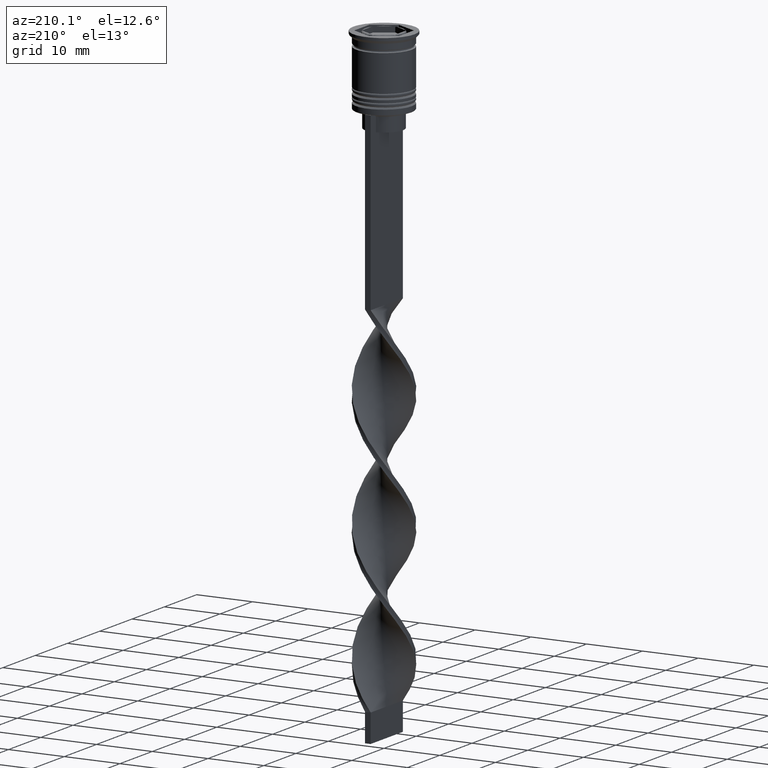
[diagram: clean part render]
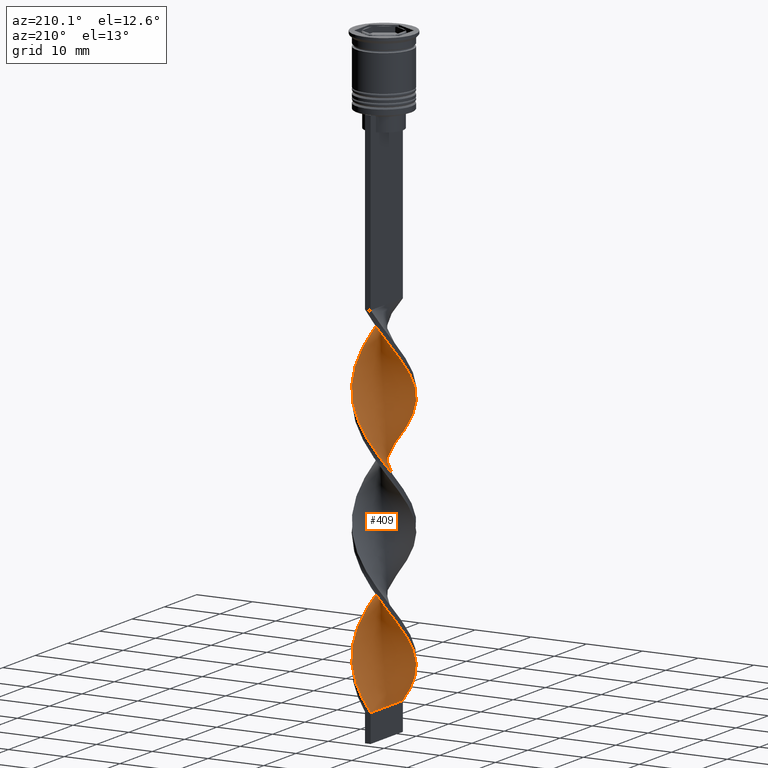
[diagram: same view with one face highlighted and labeled with its STEP entity id]
A machine part, auxiliary view. The second image highlights one B-rep face of the part: STEP entity #409.
In plain terms, the highlighted face is a freeform B-spline surface patch.
Its self-contained STEP definition (entity closure, byte-faithful):
#1 =( BOUNDED_SURFACE ( )  B_SPLINE_SURFACE ( 1, 2, ( 
 ( #1142, #1425, #281, #2482, #1371, #581, #1655, #1968, #2499, #1691, #561, #1947, #1932, #261, #2275, #3416, #3675, #3641, #858, #2854, #1122, #3381, #3347, #533, #1706, #3063, #1678, #2784, #3363, #2554, #2001, #3133, #2260, #803, #3082, #1728, #245, #299, #3626, #3656, #2802, #1068, #2210, #786, #3401, #1385, #2514, #1100, #2241, #824, #3101, #1984, #2816, #1401, #2532, #3509, #1476, #1795, #87, #1496, #2585, #3152, #2037, #1760, #313, #3185, #616, #30, #3488, #1176, #2642, #2313, #2022, #3472, #599, #2868, #891, #1743, #2570 ),
 ( #1454, #3453, #3167, #633, #1212, #2329, #2925, #2887, #1195, #329, #908, #2609, #1813, #51, #2051, #3224, #670, #3207, #2624, #2071, #1778, #652, #1156, #2910, #351, #2345, #69, #930, #367, #951, #1513, #1230, #2366, #2090, #2943, #1439, #11, #2292, #3433, #874, #3267, #1557, #2441, #2683, #1619, #1269, #969, #2419, #2109, #1834, #3545, #692, #1535, #1030, #767, #3246, #472, #1251, #2382, #1290, #1913, #128, #734, #3601, #1045, #3566, #3528, #428, #1012, #2152, #2184, #1332, #1854, #3325, #3585, #1873, #1575, #448, #2398 ) ),
 .UNSPECIFIED., .F., .F., .T. ) 
 B_SPLINE_SURFACE_WITH_KNOTS ( ( 2, 2 ),
 ( 3, 2, 2, 2, 2, 2, 2, 2, 2, 2, 2, 2, 2, 2, 2, 2, 2, 2, 2, 2, 2, 2, 2, 2, 2, 2, 2, 2, 2, 2, 2, 2, 2, 2, 2, 2, 2, 2, 2, 3 ),
 ( 0.000000000000000000, 1.000000000000000000 ),
 ( 0.000000000000000000, 0.01923076923076923184, 0.03846153846153846367, 0.05769230769230769551, 0.07692307692307692735, 0.09615384615384615918, 0.1153846153846153910, 0.1346153846153846090, 0.1538461538461538547, 0.1730769230769230727, 0.1923076923076923184, 0.2115384615384615363, 0.2307692307692307820, 0.2500000000000000000, 0.2692307692307692180, 0.2884615384615384359, 0.3076923076923077094, 0.3269230769230769273, 0.3461538461538461453, 0.3653846153846153633, 0.3846153846153846367, 0.4038461538461538547, 0.4230769230769230727, 0.4423076923076922906, 0.4615384615384615641, 0.4807692307692307820, 0.5000000000000000000, 0.5192307692307692735, 0.5384615384615384359, 0.5576923076923077094, 0.5769230769230768718, 0.5961538461538461453, 0.6153846153846154188, 0.6346153846153845812, 0.6538461538461538547, 0.6730769230769231282, 0.6923076923076922906, 0.7115384615384615641, 0.7307692307692307265, 0.7500000000000000000 ),
 .UNSPECIFIED. ) 
 GEOMETRIC_REPRESENTATION_ITEM ( )  RATIONAL_B_SPLINE_SURFACE ( (
 ( 1.000000000000000000, 0.9927088740980539727, 1.000000000000000000, 0.9927088740980539727, 1.000000000000000000, 0.9927088740980539727, 1.000000000000000000, 0.9927088740980539727, 1.000000000000000000, 0.9927088740980539727, 1.000000000000000000, 0.9927088740980539727, 1.000000000000000000, 0.9927088740980539727, 1.000000000000000000, 0.9927088740980539727, 1.000000000000000000, 0.9927088740980539727, 1.000000000000000000, 0.9927088740980539727, 1.000000000000000000, 0.9927088740980539727, 1.000000000000000000, 0.9927088740980539727, 1.000000000000000000, 0.9927088740980539727, 1.000000000000000000, 0.9927088740980539727, 1.000000000000000000, 0.9927088740980539727, 1.000000000000000000, 0.9927088740980539727, 1.000000000000000000, 0.9927088740980539727, 1.000000000000000000, 0.9927088740980539727, 1.000000000000000000, 0.9927088740980539727, 1.000000000000000000, 0.9927088740980539727, 1.000000000000000000, 0.9927088740980539727, 1.000000000000000000, 0.9927088740980539727, 1.000000000000000000, 0.9927088740980539727, 1.000000000000000000, 0.9927088740980539727, 1.000000000000000000, 0.9927088740980539727, 1.000000000000000000, 0.9927088740980539727, 1.000000000000000000, 0.9927088740980539727, 1.000000000000000000, 0.9927088740980539727, 1.000000000000000000, 0.9927088740980539727, 1.000000000000000000, 0.9927088740980539727, 1.000000000000000000, 0.9927088740980539727, 1.000000000000000000, 0.9927088740980539727, 1.000000000000000000, 0.9927088740980539727, 1.000000000000000000, 0.9927088740980539727, 1.000000000000000000, 0.9927088740980539727, 1.000000000000000000, 0.9927088740980539727, 1.000000000000000000, 0.9927088740980539727, 1.000000000000000000, 0.9927088740980539727, 1.000000000000000000, 0.9927088740980539727, 1.000000000000000000),
 ( 1.000000000000000000, 0.9927088740980539727, 1.000000000000000000, 0.9927088740980539727, 1.000000000000000000, 0.9927088740980539727, 1.000000000000000000, 0.9927088740980539727, 1.000000000000000000, 0.9927088740980539727, 1.000000000000000000, 0.9927088740980539727, 1.000000000000000000, 0.9927088740980539727, 1.000000000000000000, 0.9927088740980539727, 1.000000000000000000, 0.9927088740980539727, 1.000000000000000000, 0.9927088740980539727, 1.000000000000000000, 0.9927088740980539727, 1.000000000000000000, 0.9927088740980539727, 1.000000000000000000, 0.9927088740980539727, 1.000000000000000000, 0.9927088740980539727, 1.000000000000000000, 0.9927088740980539727, 1.000000000000000000, 0.9927088740980539727, 1.000000000000000000, 0.9927088740980539727, 1.000000000000000000, 0.9927088740980539727, 1.000000000000000000, 0.9927088740980539727, 1.000000000000000000, 0.9927088740980539727, 1.000000000000000000, 0.9927088740980539727, 1.000000000000000000, 0.9927088740980539727, 1.000000000000000000, 0.9927088740980539727, 1.000000000000000000, 0.9927088740980539727, 1.000000000000000000, 0.9927088740980539727, 1.000000000000000000, 0.9927088740980539727, 1.000000000000000000, 0.9927088740980539727, 1.000000000000000000, 0.9927088740980539727, 1.000000000000000000, 0.9927088740980539727, 1.000000000000000000, 0.9927088740980539727, 1.000000000000000000, 0.9927088740980539727, 1.000000000000000000, 0.9927088740980539727, 1.000000000000000000, 0.9927088740980539727, 1.000000000000000000, 0.9927088740980539727, 1.000000000000000000, 0.9927088740980539727, 1.000000000000000000, 0.9927088740980539727, 1.000000000000000000, 0.9927088740980539727, 1.000000000000000000, 0.9927088740980539727, 1.000000000000000000, 0.9927088740980539727, 1.000000000000000000) ) ) 
 REPRESENTATION_ITEM ( '' )  SURFACE ( )  );
#11 = CARTESIAN_POINT ( 'NONE',  ( -4.852383656948341617, 1.305516313869971912, -73.03846153846153300 ) ) ;
#30 = CARTESIAN_POINT ( 'NONE',  ( -5.010902036907450174, -0.7163302668880179302, -98.47435897435896379 ) ) ;
#51 = CARTESIAN_POINT ( 'NONE',  ( 5.036723384328412934, 0.5036723384328410935, -54.16666666666665719 ) ) ;
#69 = CARTESIAN_POINT ( 'NONE',  ( -0.4999999999999993339, 4.999999999999999112, -64.83333333333332860 ) ) ;
#85 = CARTESIAN_POINT ( 'NONE',  ( -5.036723384328415598, 0.5036723384328417596, -96.83333333333332860 ) ) ;
#87 = CARTESIAN_POINT ( 'NONE',  ( -2.941357917118425203, 4.074115069975904113, -91.08974358974359120 ) ) ;
#88 = CARTESIAN_POINT ( 'NONE',  ( -2.941357917118426535, -4.074115069975901449, -81.24358974358973740 ) ) ;
#107 = CARTESIAN_POINT ( 'NONE',  ( -4.903276030362609283, 1.099037838325643168, -53.34615384615383959 ) ) ;
#111 = CARTESIAN_POINT ( 'NONE',  ( 3.689868665289525396, -3.410992411735107588, -91.08974358974359120 ) ) ;
#126 = CARTESIAN_POINT ( 'NONE',  ( -2.256988544190328572, -4.530813501584093572, -62.37179487179486870 ) ) ;
#128 = CARTESIAN_POINT ( 'NONE',  ( 4.693865276989234836, -1.894702360851923117, -93.55128205128204399 ) ) ;
#130 = CARTESIAN_POINT ( 'NONE',  ( 3.830886956102703245, 3.251815666602606569, -58.26923076923076650 ) ) ;
#146 = CARTESIAN_POINT ( 'NONE',  ( -5.010902036907449286, -0.7163302668880179302, -98.47435897435896379 ) ) ;
#169 = CARTESIAN_POINT ( 'NONE',  ( -1.682049230150816532, -4.735051254986481162, -63.19230769230768630 ) ) ;
#174 = CARTESIAN_POINT ( 'NONE',  ( 4.903276030362607507, 1.099037838325641392, -54.98717948717948190 ) ) ;
#190 = CARTESIAN_POINT ( 'NONE',  ( -0.5000000000000002220, -1.666666666666667851, -107.5000000000000000 ) ) ;
#206 = CARTESIAN_POINT ( 'NONE',  ( -0.4999999999999993339, 4.999999999999999112, -107.5000000000000000 ) ) ;
#230 = FACE_OUTER_BOUND ( 'NONE', #3639, .T. ) ;
#245 = CARTESIAN_POINT ( 'NONE',  ( 4.497778769905806939, -2.240532556555387078, -73.03846153846153300 ) ) ;
#261 = CARTESIAN_POINT ( 'NONE',  ( -5.036723384328414710, 0.5036723384328417596, -54.16666666666665719 ) ) ;
#272 = EDGE_CURVE ( 'NONE', #1556, #3673, #2990, .T. ) ;
#279 = ORIENTED_EDGE ( 'NONE', *, *, #2842, .F. ) ;
#281 = CARTESIAN_POINT ( 'NONE',  ( -0.7111074127247628551, 4.974366919274039844, -45.14102564102563520 ) ) ;
#299 = CARTESIAN_POINT ( 'NONE',  ( 4.769828676396805633, -1.694403338218443800, -73.85897435897436480 ) ) ;
#310 = CARTESIAN_POINT ( 'NONE',  ( -3.436045048790599132, 3.716969558312887667, -49.24358974358974450 ) ) ;
#313 = CARTESIAN_POINT ( 'NONE',  ( -4.903276030362609283, 1.099037838325643168, -96.01282051282051100 ) ) ;
#329 = CARTESIAN_POINT ( 'NONE',  ( 4.693865276989234836, -1.894702360851923117, -50.88461538461538680 ) ) ;
#351 = CARTESIAN_POINT ( 'NONE',  ( 0.7111074127247642984, 4.974366919274038068, -63.19230769230768630 ) ) ;
#365 = CARTESIAN_POINT ( 'NONE',  ( 0.5000000000000000000, 5.000000000000000888, -86.16666666666667140 ) ) ;
#367 = CARTESIAN_POINT ( 'NONE',  ( -1.682049230150812980, 4.735051254986481162, -66.47435897435896379 ) ) ;
#368 = CARTESIAN_POINT ( 'NONE',  ( 1.682049230150814534, -4.735051254986480274, -45.14102564102563520 ) ) ;
#384 = CARTESIAN_POINT ( 'NONE',  ( 0.7111074127247614118, -4.974366919274040733, -66.47435897435896379 ) ) ;
#387 = CARTESIAN_POINT ( 'NONE',  ( 4.104038128678484831, -2.962961240565978205, -49.24358974358974450 ) ) ;
#406 = CARTESIAN_POINT ( 'NONE',  ( 4.769828676396804745, -1.694403338218443578, -73.85897435897436480 ) ) ;
#409 = ADVANCED_FACE ( 'NONE', ( #230 ), #1, .T. ) ;
#411 = CARTESIAN_POINT ( 'NONE',  ( 4.769828676396803857, 1.694403338218442689, -55.80769230769230660 ) ) ;
#426 = CARTESIAN_POINT ( 'NONE',  ( 4.104038128678488384, 2.962961240565975096, -80.42307692307691980 ) ) ;
#428 = CARTESIAN_POINT ( 'NONE',  ( 4.769828676396803857, 1.694403338218442912, -98.47435897435896379 ) ) ;
#430 = CARTESIAN_POINT ( 'NONE',  ( -1.682049230150812980, 4.735051254986481162, -66.47435897435896379 ) ) ;
#436 = DIRECTION ( 'NONE',  ( 0.000000000000000000, 1.000000000000000000, 0.000000000000000000 ) ) ;
#445 = CARTESIAN_POINT ( 'NONE',  ( -4.852383656948343393, -1.305516313869969913, -99.29487179487178139 ) ) ;
#448 = CARTESIAN_POINT ( 'NONE',  ( 0.1071099161113048398, 5.060710991611130360, -106.6794871794871682 ) ) ;
#449 = CARTESIAN_POINT ( 'NONE',  ( 4.225728863414809133, 2.786661774892327692, -57.44871794871794890 ) ) ;
#472 = CARTESIAN_POINT ( 'NONE',  ( 2.766343873045447044, -4.194918542244165494, -89.44871794871794179 ) ) ;
#527 = CARTESIAN_POINT ( 'NONE',  ( 4.693865276989234836, -1.894702360851923340, -93.55128205128204399 ) ) ;
#533 = CARTESIAN_POINT ( 'NONE',  ( -2.256988544190328572, -4.530813501584093572, -62.37179487179486870 ) ) ;
#561 = CARTESIAN_POINT ( 'NONE',  ( -4.497778769905806939, 2.240532556555386634, -51.70512820512820440 ) ) ;
#581 = CARTESIAN_POINT ( 'NONE',  ( -2.446670785446253049, 4.431260581638921003, -47.60256410256408799 ) ) ;
#596 = CARTESIAN_POINT ( 'NONE',  ( 0.5000000000000000000, 5.000000000000000888, -43.50000000000000000 ) ) ;
#599 = CARTESIAN_POINT ( 'NONE',  ( -2.766343873045448376, -4.194918542244166382, -104.2179487179487012 ) ) ;
#616 = CARTESIAN_POINT ( 'NONE',  ( -5.023812710617932886, -0.1063289642275874608, -97.65384615384614619 ) ) ;
#633 = CARTESIAN_POINT ( 'NONE',  ( 2.256988544190325907, -4.530813501584092684, -45.96153846153845279 ) ) ;
#650 = CARTESIAN_POINT ( 'NONE',  ( 1.107109916111305603, 4.939289008388870528, -85.34615384615385381 ) ) ;
#652 = CARTESIAN_POINT ( 'NONE',  ( 2.446670785446252605, 4.431260581638919227, -60.73076923076922640 ) ) ;
#668 = CARTESIAN_POINT ( 'NONE',  ( 2.256988544190329016, 4.530813501584093572, -83.70512820512820440 ) ) ;
#670 = CARTESIAN_POINT ( 'NONE',  ( 4.497778769905805163, 2.240532556555384414, -56.62820512820513130 ) ) ;
#671 = CARTESIAN_POINT ( 'NONE',  ( -1.107109916111301606, 4.939289008388868751, -65.65384615384614619 ) ) ;
#689 = CARTESIAN_POINT ( 'NONE',  ( 4.225728863414809133, -2.786661774892331245, -72.21794871794871540 ) ) ;
#692 = CARTESIAN_POINT ( 'NONE',  ( -0.1071099161113053949, -5.060710991611130360, -85.34615384615383959 ) ) ;
#693 = CARTESIAN_POINT ( 'NONE',  ( -2.766343873045446600, 4.194918542244165494, -68.11538461538459899 ) ) ;
#713 = CARTESIAN_POINT ( 'NONE',  ( -3.275699201900569069, -3.859023582904238303, -60.73076923076922640 ) ) ;
#731 = CARTESIAN_POINT ( 'NONE',  ( -4.769828676396803857, 1.694403338218444022, -95.19230769230769340 ) ) ;
#734 = CARTESIAN_POINT ( 'NONE',  ( 4.852383656948341617, -1.305516313869971246, -94.37179487179486159 ) ) ;
#735 = CARTESIAN_POINT ( 'NONE',  ( -4.693865276989233060, 1.894702360851926004, -72.21794871794871540 ) ) ;
#753 = CARTESIAN_POINT ( 'NONE',  ( 1.107109916111302717, -4.939289008388868751, -86.98717948717948900 ) ) ;
#767 = CARTESIAN_POINT ( 'NONE',  ( 1.682049230150814534, -4.735051254986480274, -87.80769230769230660 ) ) ;
#769 = CARTESIAN_POINT ( 'NONE',  ( -0.4999999999999997780, 1.666666666666666075, -107.5000000000000000 ) ) ;
#786 = CARTESIAN_POINT ( 'NONE',  ( 4.693865276989236612, 1.894702360851920897, -78.78205128205127039 ) ) ;
#803 = CARTESIAN_POINT ( 'NONE',  ( 3.436045048790597800, -3.716969558312888555, -70.57692307692306599 ) ) ;
#819 = CARTESIAN_POINT ( 'NONE',  ( 3.830886956102703245, 3.251815666602606569, -100.9358974358974308 ) ) ;
#824 = CARTESIAN_POINT ( 'NONE',  ( 2.256988544190329016, 4.530813501584093572, -83.70512820512820440 ) ) ;
#837 = CARTESIAN_POINT ( 'NONE',  ( -0.5000000000000006661, -5.000000000000000888, -107.5000000000000000 ) ) ;
#858 = CARTESIAN_POINT ( 'NONE',  ( -4.398951702833861610, -2.428831800708950883, -58.26923076923076650 ) ) ;
#874 = CARTESIAN_POINT ( 'NONE',  ( -5.036723384328412934, -0.5036723384328404274, -75.49999999999998579 ) ) ;
#889 = CARTESIAN_POINT ( 'NONE',  ( -4.225728863414810910, 2.786661774892329024, -50.88461538461537970 ) ) ;
#891 = CARTESIAN_POINT ( 'NONE',  ( -1.682049230150816532, -4.735051254986481162, -105.8589743589743506 ) ) ;
#908 = CARTESIAN_POINT ( 'NONE',  ( 4.852383656948341617, -1.305516313869971246, -51.70512820512820440 ) ) ;
#925 = CARTESIAN_POINT ( 'NONE',  ( -3.689868665289528060, -3.410992411735107144, -102.5769230769230660 ) ) ;
#930 = CARTESIAN_POINT ( 'NONE',  ( -1.107109916111301828, 4.939289008388868751, -65.65384615384614619 ) ) ;
#949 = CARTESIAN_POINT ( 'NONE',  ( -1.880887847392238132, 4.659641714287934278, -89.44871794871794179 ) ) ;
#951 = CARTESIAN_POINT ( 'NONE',  ( -2.256988544190325019, 4.530813501584093572, -67.29487179487178139 ) ) ;
#953 = CARTESIAN_POINT ( 'NONE',  ( 3.275699201900567292, -3.859023582904237415, -90.26923076923077360 ) ) ;
#966 = CARTESIAN_POINT ( 'NONE',  ( -4.903276030362609283, 1.099037838325643168, -96.01282051282051100 ) ) ;
#969 = CARTESIAN_POINT ( 'NONE',  ( -2.941357917118426535, -4.074115069975901449, -81.24358974358973740 ) ) ;
#971 = CARTESIAN_POINT ( 'NONE',  ( -0.1071099161113053949, -5.060710991611129472, -85.34615384615385381 ) ) ;
#987 = CARTESIAN_POINT ( 'NONE',  ( 2.766343873045451041, 4.194918542244163717, -82.88461538461537259 ) ) ;
#990 = CARTESIAN_POINT ( 'NONE',  ( -5.036723384328413822, -0.5036723384328405384, -75.50000000000000000 ) ) ;
#1010 = CARTESIAN_POINT ( 'NONE',  ( -0.7111074127247628551, 4.974366919274039844, -87.80769230769230660 ) ) ;
#1012 = CARTESIAN_POINT ( 'NONE',  ( 4.497778769905805163, 2.240532556555384414, -99.29487179487178139 ) ) ;
#1013 = CARTESIAN_POINT ( 'NONE',  ( 4.693865276989234836, -1.894702360851923340, -50.88461538461537970 ) ) ;
#1030 = CARTESIAN_POINT ( 'NONE',  ( 1.107109916111302717, -4.939289008388868751, -86.98717948717948900 ) ) ;
#1031 = CARTESIAN_POINT ( 'NONE',  ( -1.315104909338224548, -4.888022846936946664, -83.70512820512820440 ) ) ;
#1045 = CARTESIAN_POINT ( 'NONE',  ( 5.023812710617931110, -0.1063289642275889874, -96.01282051282051100 ) ) ;
#1048 = CARTESIAN_POINT ( 'NONE',  ( 4.852383656948341617, -1.305516313869971246, -94.37179487179486159 ) ) ;
#1064 = CARTESIAN_POINT ( 'NONE',  ( 5.036723384328413822, 0.5036723384328410935, -96.83333333333332860 ) ) ;
#1068 = CARTESIAN_POINT ( 'NONE',  ( 5.010902036907451063, 0.7163302668880160429, -77.14102564102563520 ) ) ;
#1078 = CARTESIAN_POINT ( 'NONE',  ( 1.315104909338224104, 4.888022846936946664, -105.0384615384615188 ) ) ;
#1100 = CARTESIAN_POINT ( 'NONE',  ( 3.275699201900569513, 3.859023582904238303, -82.06410256410255499 ) ) ;
#1122 = CARTESIAN_POINT ( 'NONE',  ( -3.689868665289528060, -3.410992411735107144, -59.91025641025640880 ) ) ;
#1142 = CARTESIAN_POINT ( 'NONE',  ( 0.5000000000000000000, 5.000000000000000888, -43.50000000000000000 ) ) ;
#1156 = CARTESIAN_POINT ( 'NONE',  ( 1.880887847392238132, 4.659641714287932501, -61.55128205128204399 ) ) ;
#1176 = CARTESIAN_POINT ( 'NONE',  ( -4.693865276989236612, -1.894702360851923562, -100.1153846153846274 ) ) ;
#1195 = CARTESIAN_POINT ( 'NONE',  ( 4.398951702833859834, -2.428831800708950883, -50.06410256410256210 ) ) ;
#1212 = CARTESIAN_POINT ( 'NONE',  ( 2.766343873045447044, -4.194918542244165494, -46.78205128205127750 ) ) ;
#1227 = CARTESIAN_POINT ( 'NONE',  ( 3.830886956102704133, -3.251815666602608346, -71.39743589743588359 ) ) ;
#1230 = CARTESIAN_POINT ( 'NONE',  ( -3.275699201900567736, 3.859023582904237415, -68.93589743589743080 ) ) ;
#1232 = CARTESIAN_POINT ( 'NONE',  ( 2.766343873045447044, -4.194918542244165494, -89.44871794871794179 ) ) ;
#1249 = CARTESIAN_POINT ( 'NONE',  ( -2.446670785446253049, 4.431260581638920115, -90.26923076923077360 ) ) ;
#1251 = CARTESIAN_POINT ( 'NONE',  ( 3.275699201900567736, -3.859023582904237415, -90.26923076923075939 ) ) ;
#1254 = CARTESIAN_POINT ( 'NONE',  ( 0.1071099161113048537, 5.060710991611129472, -64.01282051282051100 ) ) ;
#1267 = CARTESIAN_POINT ( 'NONE',  ( 1.880887847392237688, -4.659641714287934278, -68.11538461538459899 ) ) ;
#1269 = CARTESIAN_POINT ( 'NONE',  ( -3.436045048790600909, -3.716969558312882782, -80.42307692307691980 ) ) ;
#1270 = CARTESIAN_POINT ( 'NONE',  ( 2.941357917118426091, 4.074115069975901449, -59.91025641025640880 ) ) ;
#1288 = CARTESIAN_POINT ( 'NONE',  ( -1.107109916111305159, -4.939289008388870528, -64.01282051282051100 ) ) ;
#1290 = CARTESIAN_POINT ( 'NONE',  ( 4.104038128678483943, -2.962961240565977761, -91.91025641025643722 ) ) ;
#1292 = CARTESIAN_POINT ( 'NONE',  ( -2.256988544190325019, 4.530813501584093572, -67.29487179487178139 ) ) ;
#1311 = CARTESIAN_POINT ( 'NONE',  ( -4.693865276989236612, -1.894702360851923784, -100.1153846153846132 ) ) ;
#1314 = CARTESIAN_POINT ( 'NONE',  ( -4.497778769905805163, -2.240532556555384858, -77.96153846153845279 ) ) ;
#1332 = CARTESIAN_POINT ( 'NONE',  ( 3.436045048790599132, 3.716969558312884558, -101.7564102564102484 ) ) ;
#1333 = CARTESIAN_POINT ( 'NONE',  ( 4.903276030362607507, 1.099037838325641392, -97.65384615384614619 ) ) ;
#1369 = ORIENTED_EDGE ( 'NONE', *, *, #2558, .T. ) ;
#1371 = CARTESIAN_POINT ( 'NONE',  ( -1.880887847392238132, 4.659641714287934278, -46.78205128205127750 ) ) ;
#1385 = CARTESIAN_POINT ( 'NONE',  ( 4.104038128678487496, 2.962961240565975096, -80.42307692307691980 ) ) ;
#1401 = CARTESIAN_POINT ( 'NONE',  ( -0.1071099161113027859, 5.060710991611132137, -86.98717948717948900 ) ) ;
#1425 = CARTESIAN_POINT ( 'NONE',  ( -0.1071099161113027859, 5.060710991611132137, -44.32051282051282470 ) ) ;
#1439 = CARTESIAN_POINT ( 'NONE',  ( -4.693865276989233060, 1.894702360851926226, -72.21794871794871540 ) ) ;
#1454 = CARTESIAN_POINT ( 'NONE',  ( 0.5000000000000000000, -4.999999999999999112, -43.50000000000000000 ) ) ;
#1476 = CARTESIAN_POINT ( 'NONE',  ( -1.880887847392238132, 4.659641714287934278, -89.44871794871794179 ) ) ;
#1496 = CARTESIAN_POINT ( 'NONE',  ( -3.436045048790599132, 3.716969558312887667, -91.91025641025643722 ) ) ;
#1510 = CARTESIAN_POINT ( 'NONE',  ( -4.398951702833861610, -2.428831800708950883, -58.26923076923076650 ) ) ;
#1513 = CARTESIAN_POINT ( 'NONE',  ( -2.766343873045446600, 4.194918542244165494, -68.11538461538459899 ) ) ;
#1514 = CARTESIAN_POINT ( 'NONE',  ( -4.104038128678483943, 2.962961240565979537, -70.57692307692306599 ) ) ;
#1532 = CARTESIAN_POINT ( 'NONE',  ( 4.903276030362609283, -1.099037838325644945, -74.67948717948718240 ) ) ;
#1535 = CARTESIAN_POINT ( 'NONE',  ( 0.5000000000000000000, -4.999999999999999112, -86.16666666666667140 ) ) ;
#1538 = CARTESIAN_POINT ( 'NONE',  ( -1.880887847392241019, -4.659641714287931613, -82.88461538461537259 ) ) ;
#1554 = CARTESIAN_POINT ( 'NONE',  ( -3.830886956102704133, 3.251815666602608346, -92.73076923076922640 ) ) ;
#1556 = VERTEX_POINT ( 'NONE', #2864 ) ;
#1557 = CARTESIAN_POINT ( 'NONE',  ( -4.769828676396804745, -1.694403338218441357, -77.14102564102563520 ) ) ;
#1558 = CARTESIAN_POINT ( 'NONE',  ( -0.7111074127247671850, -4.974366919274038068, -84.52564102564103621 ) ) ;
#1563 = CARTESIAN_POINT ( 'NONE',  ( 0.5000000000000000000, -4.999999999999999112, -43.50000000000000000 ) ) ;
#1572 = CARTESIAN_POINT ( 'NONE',  ( 1.682049230150819419, 4.735051254986480274, -84.52564102564103621 ) ) ;
#1575 = CARTESIAN_POINT ( 'NONE',  ( 0.7111074127247642984, 4.974366919274038068, -105.8589743589743506 ) ) ;
#1577 = CARTESIAN_POINT ( 'NONE',  ( 3.436045048790599132, 3.716969558312884558, -59.08974358974358410 ) ) ;
#1594 = CARTESIAN_POINT ( 'NONE',  ( 5.010902036907450174, 0.7163302668880160429, -77.14102564102563520 ) ) ;
#1598 = CARTESIAN_POINT ( 'NONE',  ( -4.769828676396803857, -1.694403338218441135, -77.14102564102563520 ) ) ;
#1619 = CARTESIAN_POINT ( 'NONE',  ( -3.830886956102704577, -3.251815666602606125, -79.60256410256410220 ) ) ;
#1655 = CARTESIAN_POINT ( 'NONE',  ( -2.941357917118425203, 4.074115069975904113, -48.42307692307691269 ) ) ;
#1663 =( BOUNDED_CURVE ( )  B_SPLINE_CURVE ( 2, ( #596, #3486, #2582, #2884, #1740, #3450, #2865, #310, #2309, #889, #2034, #2681, #107, #2088, #2982, #3221, #2150, #1811, #1510, #2962, #2639, #713, #3264, #126, #169, #1288, #2939, #2362, #384, #3506, #1267, #1851, #1831, #2416, #1227, #689, #2380, #406, #1532, #2661, #3563, #1594, #1871, #3526, #2722, #426, #2396, #2107, #987, #668, #1572, #650, #365, #3542, #1010, #2922, #949, #1249, #2701, #3243, #1554, #2126, #3284, #731, #966, #85, #3001, #146, #445, #1311, #1792, #2439, #925, #2067, #3204, #2746, #2181, #1666, #2232 ),
 .UNSPECIFIED., .F., .T. ) 
 B_SPLINE_CURVE_WITH_KNOTS ( ( 3, 2, 2, 2, 2, 2, 2, 2, 2, 2, 2, 2, 2, 2, 2, 2, 2, 2, 2, 2, 2, 2, 2, 2, 2, 2, 2, 2, 2, 2, 2, 2, 2, 2, 2, 2, 2, 2, 2, 3 ),
 ( 0.000000000000000000, 0.01923076923076923184, 0.03846153846153846367, 0.05769230769230768857, 0.07692307692307692735, 0.09615384615384615918, 0.1153846153846153771, 0.1346153846153846090, 0.1538461538461538547, 0.1730769230769230449, 0.1923076923076923184, 0.2115384615384615363, 0.2307692307692307543, 0.2500000000000000000, 0.2692307692307692180, 0.2884615384615384359, 0.3076923076923077094, 0.3269230769230769273, 0.3461538461538460898, 0.3653846153846153633, 0.3846153846153846367, 0.4038461538461539102, 0.4230769230769230727, 0.4423076923076922906, 0.4615384615384615086, 0.4807692307692307820, 0.5000000000000000000, 0.5192307692307692735, 0.5384615384615384359, 0.5576923076923077094, 0.5769230769230768718, 0.5961538461538461453, 0.6153846153846154188, 0.6346153846153845812, 0.6538461538461538547, 0.6730769230769230171, 0.6923076923076921796, 0.7115384615384615641, 0.7307692307692307265, 0.7500000000000000000 ),
 .UNSPECIFIED. ) 
 CURVE ( )  GEOMETRIC_REPRESENTATION_ITEM ( )  RATIONAL_B_SPLINE_CURVE ( ( 1.000000000000000000, 0.9927088740980539727, 1.000000000000000000, 0.9927088740980539727, 1.000000000000000000, 0.9927088740980539727, 1.000000000000000000, 0.9927088740980539727, 1.000000000000000000, 0.9927088740980539727, 1.000000000000000000, 0.9927088740980539727, 1.000000000000000000, 0.9927088740980539727, 1.000000000000000000, 0.9927088740980539727, 1.000000000000000000, 0.9927088740980539727, 1.000000000000000000, 0.9927088740980539727, 1.000000000000000000, 0.9927088740980539727, 1.000000000000000000, 0.9927088740980539727, 1.000000000000000000, 0.9927088740980539727, 1.000000000000000000, 0.9927088740980539727, 1.000000000000000000, 0.9927088740980539727, 1.000000000000000000, 0.9927088740980539727, 1.000000000000000000, 0.9927088740980539727, 1.000000000000000000, 0.9927088740980539727, 1.000000000000000000, 0.9927088740980539727, 1.000000000000000000, 0.9927088740980539727, 1.000000000000000000, 0.9927088740980539727, 1.000000000000000000, 0.9927088740980539727, 1.000000000000000000, 0.9927088740980539727, 1.000000000000000000, 0.9927088740980539727, 1.000000000000000000, 0.9927088740980539727, 1.000000000000000000, 0.9927088740980539727, 1.000000000000000000, 0.9927088740980539727, 1.000000000000000000, 0.9927088740980539727, 1.000000000000000000, 0.9927088740980539727, 1.000000000000000000, 0.9927088740980539727, 1.000000000000000000, 0.9927088740980539727, 1.000000000000000000, 0.9927088740980539727, 1.000000000000000000, 0.9927088740980539727, 1.000000000000000000, 0.9927088740980539727, 1.000000000000000000, 0.9927088740980539727, 1.000000000000000000, 0.9927088740980539727, 1.000000000000000000, 0.9927088740980539727, 1.000000000000000000, 0.9927088740980539727, 1.000000000000000000, 0.9927088740980539727, 1.000000000000000000 ) ) 
 REPRESENTATION_ITEM ( '' )  );
#1666 = CARTESIAN_POINT ( 'NONE',  ( -1.107109916111305159, -4.939289008388870528, -106.6794871794871824 ) ) ;
#1674 = CARTESIAN_POINT ( 'NONE',  ( 1.880887847392238132, 4.659641714287932501, -104.2179487179487012 ) ) ;
#1678 = CARTESIAN_POINT ( 'NONE',  ( -0.5000000000000006661, -5.000000000000000888, -64.83333333333332860 ) ) ;
#1691 = CARTESIAN_POINT ( 'NONE',  ( -4.225728863414810910, 2.786661774892328580, -50.88461538461538680 ) ) ;
#1706 = CARTESIAN_POINT ( 'NONE',  ( -1.682049230150816532, -4.735051254986481162, -63.19230769230768630 ) ) ;
#1718 = ORIENTED_EDGE ( 'NONE', *, *, #272, .F. ) ;
#1728 = CARTESIAN_POINT ( 'NONE',  ( 4.225728863414809133, -2.786661774892330801, -72.21794871794871540 ) ) ;
#1740 = CARTESIAN_POINT ( 'NONE',  ( -1.880887847392238132, 4.659641714287934278, -46.78205128205127750 ) ) ;
#1743 = CARTESIAN_POINT ( 'NONE',  ( -1.107109916111304937, -4.939289008388870528, -106.6794871794871682 ) ) ;
#1760 = CARTESIAN_POINT ( 'NONE',  ( -4.769828676396804745, 1.694403338218444244, -95.19230769230769340 ) ) ;
#1778 = CARTESIAN_POINT ( 'NONE',  ( 2.941357917118426091, 4.074115069975901449, -59.91025641025640880 ) ) ;
#1792 = CARTESIAN_POINT ( 'NONE',  ( -4.398951702833861610, -2.428831800708950883, -100.9358974358974308 ) ) ;
#1795 = CARTESIAN_POINT ( 'NONE',  ( -2.446670785446253049, 4.431260581638921003, -90.26923076923075939 ) ) ;
#1811 = CARTESIAN_POINT ( 'NONE',  ( -4.693865276989236612, -1.894702360851923784, -57.44871794871794890 ) ) ;
#1813 = CARTESIAN_POINT ( 'NONE',  ( 5.023812710617931110, -0.1063289642275889874, -53.34615384615383959 ) ) ;
#1814 = CARTESIAN_POINT ( 'NONE',  ( -3.275699201900567292, 3.859023582904237415, -68.93589743589743080 ) ) ;
#1831 = CARTESIAN_POINT ( 'NONE',  ( 2.941357917118424758, -4.074115069975905001, -69.75641025641024839 ) ) ;
#1834 = CARTESIAN_POINT ( 'NONE',  ( -1.315104909338224770, -4.888022846936946664, -83.70512820512820440 ) ) ;
#1836 = CARTESIAN_POINT ( 'NONE',  ( -2.446670785446253493, -4.431260581638918339, -82.06410256410255499 ) ) ;
#1851 = CARTESIAN_POINT ( 'NONE',  ( 2.446670785446252161, -4.431260581638921003, -68.93589743589743080 ) ) ;
#1854 = CARTESIAN_POINT ( 'NONE',  ( 2.941357917118426091, 4.074115069975901449, -102.5769230769230660 ) ) ;
#1855 = CARTESIAN_POINT ( 'NONE',  ( 5.023812710617931110, -0.1063289642275889874, -53.34615384615383959 ) ) ;
#1871 = CARTESIAN_POINT ( 'NONE',  ( 4.852383656948343393, 1.305516313869970801, -77.96153846153845279 ) ) ;
#1873 = CARTESIAN_POINT ( 'NONE',  ( 1.315104909338224326, 4.888022846936946664, -105.0384615384615330 ) ) ;
#1875 = CARTESIAN_POINT ( 'NONE',  ( 1.107109916111302717, -4.939289008388868751, -44.32051282051282470 ) ) ;
#1896 = CARTESIAN_POINT ( 'NONE',  ( -4.903276030362609283, -1.099037838325638727, -76.32051282051281760 ) ) ;
#1913 = CARTESIAN_POINT ( 'NONE',  ( 4.398951702833859834, -2.428831800708950883, -92.73076923076922640 ) ) ;
#1914 = CARTESIAN_POINT ( 'NONE',  ( -0.4999999999999993339, 4.999999999999999112, -107.5000000000000000 ) ) ;
#1931 = CARTESIAN_POINT ( 'NONE',  ( 0.5000000000000000000, 5.000000000000000888, -43.50000000000000000 ) ) ;
#1932 = CARTESIAN_POINT ( 'NONE',  ( -4.903276030362609283, 1.099037838325643168, -53.34615384615383959 ) ) ;
#1947 = CARTESIAN_POINT ( 'NONE',  ( -4.769828676396804745, 1.694403338218444244, -52.52564102564103621 ) ) ;
#1968 = CARTESIAN_POINT ( 'NONE',  ( -3.436045048790599132, 3.716969558312887667, -49.24358974358973740 ) ) ;
#1984 = CARTESIAN_POINT ( 'NONE',  ( 1.107109916111305381, 4.939289008388870528, -85.34615384615383959 ) ) ;
#2001 = CARTESIAN_POINT ( 'NONE',  ( 1.880887847392237688, -4.659641714287934278, -68.11538461538459899 ) ) ;
#2022 = CARTESIAN_POINT ( 'NONE',  ( -3.689868665289528060, -3.410992411735107144, -102.5769230769230660 ) ) ;
#2034 = CARTESIAN_POINT ( 'NONE',  ( -4.497778769905806939, 2.240532556555386634, -51.70512820512820440 ) ) ;
#2037 = CARTESIAN_POINT ( 'NONE',  ( -4.497778769905806939, 2.240532556555386634, -94.37179487179486159 ) ) ;
#2051 = CARTESIAN_POINT ( 'NONE',  ( 4.903276030362607507, 1.099037838325641392, -54.98717948717948190 ) ) ;
#2067 = CARTESIAN_POINT ( 'NONE',  ( -3.275699201900569069, -3.859023582904238303, -103.3974358974358836 ) ) ;
#2071 = CARTESIAN_POINT ( 'NONE',  ( 3.436045048790599132, 3.716969558312884558, -59.08974358974359120 ) ) ;
#2085 = VERTEX_POINT ( 'NONE', #2374 ) ;
#2088 = CARTESIAN_POINT ( 'NONE',  ( -5.036723384328415598, 0.5036723384328417596, -54.16666666666666430 ) ) ;
#2090 = CARTESIAN_POINT ( 'NONE',  ( -4.104038128678483055, 2.962961240565979093, -70.57692307692306599 ) ) ;
#2107 = CARTESIAN_POINT ( 'NONE',  ( 3.275699201900569513, 3.859023582904238303, -82.06410256410255499 ) ) ;
#2109 = CARTESIAN_POINT ( 'NONE',  ( -1.880887847392241019, -4.659641714287931613, -82.88461538461537259 ) ) ;
#2110 = CARTESIAN_POINT ( 'NONE',  ( -5.010902036907447510, 0.7163302668880177082, -73.85897435897436480 ) ) ;
#2126 = CARTESIAN_POINT ( 'NONE',  ( -4.225728863414810910, 2.786661774892329024, -93.55128205128204399 ) ) ;
#2131 = CARTESIAN_POINT ( 'NONE',  ( 1.682049230150814534, -4.735051254986480274, -87.80769230769230660 ) ) ;
#2150 = CARTESIAN_POINT ( 'NONE',  ( -4.852383656948343393, -1.305516313869969913, -56.62820512820513130 ) ) ;
#2152 = CARTESIAN_POINT ( 'NONE',  ( 4.225728863414809133, 2.786661774892327248, -100.1153846153846274 ) ) ;
#2153 = CARTESIAN_POINT ( 'NONE',  ( -0.4999999999999993339, 4.999999999999999112, -64.83333333333332860 ) ) ;
#2169 = CARTESIAN_POINT ( 'NONE',  ( 2.766343873045447044, -4.194918542244165494, -46.78205128205127750 ) ) ;
#2181 = CARTESIAN_POINT ( 'NONE',  ( -1.682049230150816532, -4.735051254986481162, -105.8589743589743506 ) ) ;
#2184 = CARTESIAN_POINT ( 'NONE',  ( 3.830886956102703245, 3.251815666602606569, -100.9358974358974308 ) ) ;
#2186 = CARTESIAN_POINT ( 'NONE',  ( 4.769828676396803857, 1.694403338218442689, -98.47435897435896379 ) ) ;
#2210 = CARTESIAN_POINT ( 'NONE',  ( 4.852383656948343393, 1.305516313869970801, -77.96153846153845279 ) ) ;
#2232 = CARTESIAN_POINT ( 'NONE',  ( -0.5000000000000006661, -5.000000000000000888, -107.5000000000000000 ) ) ;
#2241 = CARTESIAN_POINT ( 'NONE',  ( 2.766343873045451041, 4.194918542244163717, -82.88461538461537259 ) ) ;
#2258 = CARTESIAN_POINT ( 'NONE',  ( 0.7111074127247642984, 4.974366919274038068, -105.8589743589743506 ) ) ;
#2260 = CARTESIAN_POINT ( 'NONE',  ( 2.941357917118424758, -4.074115069975905001, -69.75641025641024839 ) ) ;
#2275 = CARTESIAN_POINT ( 'NONE',  ( -5.023812710617932886, -0.1063289642275874608, -54.98717948717948190 ) ) ;
#2292 = CARTESIAN_POINT ( 'NONE',  ( -5.010902036907448398, 0.7163302668880177082, -73.85897435897436480 ) ) ;
#2309 = CARTESIAN_POINT ( 'NONE',  ( -3.830886956102704133, 3.251815666602608346, -50.06410256410256210 ) ) ;
#2313 = CARTESIAN_POINT ( 'NONE',  ( -4.104038128678486608, -2.962961240565977317, -101.7564102564102484 ) ) ;
#2329 = CARTESIAN_POINT ( 'NONE',  ( 3.275699201900567736, -3.859023582904237415, -47.60256410256408799 ) ) ;
#2345 = CARTESIAN_POINT ( 'NONE',  ( 0.1071099161113048398, 5.060710991611130360, -64.01282051282051100 ) ) ;
#2362 = CARTESIAN_POINT ( 'NONE',  ( 0.1071099161113016063, -5.060710991611131249, -65.65384615384614619 ) ) ;
#2366 = CARTESIAN_POINT ( 'NONE',  ( -3.689868665289524952, 3.410992411735108476, -69.75641025641024839 ) ) ;
#2368 = CARTESIAN_POINT ( 'NONE',  ( 4.497778769905805163, 2.240532556555384414, -56.62820512820513130 ) ) ;
#2374 = CARTESIAN_POINT ( 'NONE',  ( -0.5000000000000006661, -5.000000000000000888, -107.5000000000000000 ) ) ;
#2380 = CARTESIAN_POINT ( 'NONE',  ( 4.497778769905806939, -2.240532556555387078, -73.03846153846153300 ) ) ;
#2382 = CARTESIAN_POINT ( 'NONE',  ( 3.689868665289525396, -3.410992411735107588, -91.08974358974359120 ) ) ;
#2384 = CARTESIAN_POINT ( 'NONE',  ( 4.104038128678484831, -2.962961240565978205, -91.91025641025643722 ) ) ;
#2396 = CARTESIAN_POINT ( 'NONE',  ( 3.689868665289528504, 3.410992411735106700, -81.24358974358973740 ) ) ;
#2398 = CARTESIAN_POINT ( 'NONE',  ( -0.4999999999999993339, 4.999999999999999112, -107.5000000000000000 ) ) ;
#2400 = CARTESIAN_POINT ( 'NONE',  ( 0.7111074127247642984, 4.974366919274038068, -63.19230769230768630 ) ) ;
#2416 = CARTESIAN_POINT ( 'NONE',  ( 3.436045048790597800, -3.716969558312888555, -70.57692307692306599 ) ) ;
#2419 = CARTESIAN_POINT ( 'NONE',  ( -2.446670785446253493, -4.431260581638919227, -82.06410256410255499 ) ) ;
#2421 = CARTESIAN_POINT ( 'NONE',  ( -4.852383656948341617, 1.305516313869971912, -73.03846153846153300 ) ) ;
#2439 = CARTESIAN_POINT ( 'NONE',  ( -4.104038128678487496, -2.962961240565977761, -101.7564102564102484 ) ) ;
#2441 = CARTESIAN_POINT ( 'NONE',  ( -4.497778769905805163, -2.240532556555384858, -77.96153846153845279 ) ) ;
#2442 = CARTESIAN_POINT ( 'NONE',  ( -4.225728863414810910, -2.786661774892325028, -78.78205128205127039 ) ) ;
#2462 = ORIENTED_EDGE ( 'NONE', *, *, #2562, .F. ) ;
#2482 = CARTESIAN_POINT ( 'NONE',  ( -1.315104909338222772, 4.888022846936949328, -45.96153846153845279 ) ) ;
#2496 = CARTESIAN_POINT ( 'NONE',  ( 4.497778769905805163, 2.240532556555384414, -99.29487179487178139 ) ) ;
#2499 = CARTESIAN_POINT ( 'NONE',  ( -3.830886956102704133, 3.251815666602608346, -50.06410256410256210 ) ) ;
#2510 = CARTESIAN_POINT ( 'NONE',  ( 2.941357917118426091, 4.074115069975901449, -102.5769230769230660 ) ) ;
#2514 = CARTESIAN_POINT ( 'NONE',  ( 3.689868665289528504, 3.410992411735106700, -81.24358974358973740 ) ) ;
#2532 = CARTESIAN_POINT ( 'NONE',  ( -0.7111074127247628551, 4.974366919274039844, -87.80769230769230660 ) ) ;
#2536 = VECTOR ( 'NONE', #436, 1000.000000000000000 ) ;
#2554 = CARTESIAN_POINT ( 'NONE',  ( 1.315104909338221217, -4.888022846936949328, -67.29487179487178139 ) ) ;
#2558 = EDGE_CURVE ( 'NONE', #1556, #2682, #2574, .T. ) ;
#2562 = EDGE_CURVE ( 'NONE', #2085, #2682, #2565, .T. ) ;
#2565 = B_SPLINE_CURVE_WITH_KNOTS ( 'NONE', 3,
 ( #837, #190, #769, #1914 ),
 .UNSPECIFIED., .F., .F.,
 ( 4, 4 ),
 ( 0.000000000000000000, 1.000000000000000000 ),
 .UNSPECIFIED. ) ;
#2570 = CARTESIAN_POINT ( 'NONE',  ( -0.5000000000000006661, -5.000000000000000888, -107.5000000000000000 ) ) ;
#2574 =( BOUNDED_CURVE ( )  B_SPLINE_CURVE ( 2, ( #3005, #1875, #368, #2944, #2169, #3226, #3546, #387, #3269, #1013, #3529, #3511, #1855, #2727, #174, #411, #2368, #449, #130, #1577, #1270, #3248, #2704, #2986, #2400, #1254, #2153, #671, #430, #1292, #693, #1814, #3288, #1514, #3309, #735, #2421, #2110, #3568, #990, #1896, #1598, #1314, #2442, #2967, #3586, #88, #1836, #1538, #1031, #1558, #971, #2665, #753, #2131, #2643, #1232, #953, #111, #2384, #2685, #527, #1048, #3638, #3343, #1064, #1333, #2186, #2496, #3653, #819, #3327, #2510, #2799, #1674, #1078, #2258, #3376, #206 ),
 .UNSPECIFIED., .F., .T. ) 
 B_SPLINE_CURVE_WITH_KNOTS ( ( 3, 2, 2, 2, 2, 2, 2, 2, 2, 2, 2, 2, 2, 2, 2, 2, 2, 2, 2, 2, 2, 2, 2, 2, 2, 2, 2, 2, 2, 2, 2, 2, 2, 2, 2, 2, 2, 2, 2, 3 ),
 ( 0.000000000000000000, 0.01923076923076923184, 0.03846153846153846367, 0.05769230769230768857, 0.07692307692307692735, 0.09615384615384615918, 0.1153846153846153771, 0.1346153846153846090, 0.1538461538461538547, 0.1730769230769230449, 0.1923076923076923184, 0.2115384615384615363, 0.2307692307692307543, 0.2500000000000000000, 0.2692307692307692180, 0.2884615384615384359, 0.3076923076923077094, 0.3269230769230769273, 0.3461538461538460898, 0.3653846153846153633, 0.3846153846153846367, 0.4038461538461539102, 0.4230769230769230727, 0.4423076923076922906, 0.4615384615384615086, 0.4807692307692307820, 0.5000000000000000000, 0.5192307692307692735, 0.5384615384615384359, 0.5576923076923077094, 0.5769230769230768718, 0.5961538461538461453, 0.6153846153846154188, 0.6346153846153845812, 0.6538461538461538547, 0.6730769230769230171, 0.6923076923076921796, 0.7115384615384615641, 0.7307692307692307265, 0.7500000000000000000 ),
 .UNSPECIFIED. ) 
 CURVE ( )  GEOMETRIC_REPRESENTATION_ITEM ( )  RATIONAL_B_SPLINE_CURVE ( ( 1.000000000000000000, 0.9927088740980539727, 1.000000000000000000, 0.9927088740980539727, 1.000000000000000000, 0.9927088740980539727, 1.000000000000000000, 0.9927088740980539727, 1.000000000000000000, 0.9927088740980539727, 1.000000000000000000, 0.9927088740980539727, 1.000000000000000000, 0.9927088740980539727, 1.000000000000000000, 0.9927088740980539727, 1.000000000000000000, 0.9927088740980539727, 1.000000000000000000, 0.9927088740980539727, 1.000000000000000000, 0.9927088740980539727, 1.000000000000000000, 0.9927088740980539727, 1.000000000000000000, 0.9927088740980539727, 1.000000000000000000, 0.9927088740980539727, 1.000000000000000000, 0.9927088740980539727, 1.000000000000000000, 0.9927088740980539727, 1.000000000000000000, 0.9927088740980539727, 1.000000000000000000, 0.9927088740980539727, 1.000000000000000000, 0.9927088740980539727, 1.000000000000000000, 0.9927088740980539727, 1.000000000000000000, 0.9927088740980539727, 1.000000000000000000, 0.9927088740980539727, 1.000000000000000000, 0.9927088740980539727, 1.000000000000000000, 0.9927088740980539727, 1.000000000000000000, 0.9927088740980539727, 1.000000000000000000, 0.9927088740980539727, 1.000000000000000000, 0.9927088740980539727, 1.000000000000000000, 0.9927088740980539727, 1.000000000000000000, 0.9927088740980539727, 1.000000000000000000, 0.9927088740980539727, 1.000000000000000000, 0.9927088740980539727, 1.000000000000000000, 0.9927088740980539727, 1.000000000000000000, 0.9927088740980539727, 1.000000000000000000, 0.9927088740980539727, 1.000000000000000000, 0.9927088740980539727, 1.000000000000000000, 0.9927088740980539727, 1.000000000000000000, 0.9927088740980539727, 1.000000000000000000, 0.9927088740980539727, 1.000000000000000000, 0.9927088740980539727, 1.000000000000000000 ) ) 
 REPRESENTATION_ITEM ( '' )  );
#2582 = CARTESIAN_POINT ( 'NONE',  ( -0.7111074127247628551, 4.974366919274039844, -45.14102564102563520 ) ) ;
#2585 = CARTESIAN_POINT ( 'NONE',  ( -3.830886956102704133, 3.251815666602608346, -92.73076923076922640 ) ) ;
#2609 = CARTESIAN_POINT ( 'NONE',  ( 5.010902036907449286, -0.7163302668880181523, -52.52564102564103621 ) ) ;
#2624 = CARTESIAN_POINT ( 'NONE',  ( 3.830886956102703245, 3.251815666602606569, -58.26923076923076650 ) ) ;
#2639 = CARTESIAN_POINT ( 'NONE',  ( -3.689868665289528060, -3.410992411735107144, -59.91025641025640880 ) ) ;
#2642 = CARTESIAN_POINT ( 'NONE',  ( -4.398951702833861610, -2.428831800708950883, -100.9358974358974308 ) ) ;
#2643 = CARTESIAN_POINT ( 'NONE',  ( 2.256988544190326351, -4.530813501584092684, -88.62820512820512420 ) ) ;
#2661 = CARTESIAN_POINT ( 'NONE',  ( 5.036723384328415598, -0.5036723384328424258, -75.50000000000000000 ) ) ;
#2665 = CARTESIAN_POINT ( 'NONE',  ( 0.5000000000000000000, -4.999999999999999112, -86.16666666666667140 ) ) ;
#2681 = CARTESIAN_POINT ( 'NONE',  ( -4.769828676396803857, 1.694403338218444022, -52.52564102564102910 ) ) ;
#2682 = VERTEX_POINT ( 'NONE', #2814 ) ;
#2683 = CARTESIAN_POINT ( 'NONE',  ( -4.225728863414810910, -2.786661774892325028, -78.78205128205127039 ) ) ;
#2685 = CARTESIAN_POINT ( 'NONE',  ( 4.398951702833859834, -2.428831800708950883, -92.73076923076922640 ) ) ;
#2701 = CARTESIAN_POINT ( 'NONE',  ( -2.941357917118425203, 4.074115069975904113, -91.08974358974359120 ) ) ;
#2704 = CARTESIAN_POINT ( 'NONE',  ( 1.880887847392238132, 4.659641714287932501, -61.55128205128204399 ) ) ;
#2722 = CARTESIAN_POINT ( 'NONE',  ( 4.398951702833861610, 2.428831800708950439, -79.60256410256410220 ) ) ;
#2727 = CARTESIAN_POINT ( 'NONE',  ( 5.036723384328413822, 0.5036723384328410935, -54.16666666666666430 ) ) ;
#2746 = CARTESIAN_POINT ( 'NONE',  ( -2.256988544190328572, -4.530813501584093572, -105.0384615384615188 ) ) ;
#2784 = CARTESIAN_POINT ( 'NONE',  ( 0.1071099161113016063, -5.060710991611132137, -65.65384615384614619 ) ) ;
#2799 = CARTESIAN_POINT ( 'NONE',  ( 2.446670785446252605, 4.431260581638918339, -103.3974358974358836 ) ) ;
#2802 = CARTESIAN_POINT ( 'NONE',  ( 5.023812710617932886, 0.1063289642275847546, -76.32051282051281760 ) ) ;
#2814 = CARTESIAN_POINT ( 'NONE',  ( -0.4999999999999993339, 4.999999999999999112, -107.5000000000000000 ) ) ;
#2816 = CARTESIAN_POINT ( 'NONE',  ( 0.5000000000000000000, 5.000000000000000888, -86.16666666666667140 ) ) ;
#2842 = EDGE_CURVE ( 'NONE', #3673, #2085, #1663, .T. ) ;
#2854 = CARTESIAN_POINT ( 'NONE',  ( -4.104038128678486608, -2.962961240565977317, -59.08974358974359120 ) ) ;
#2864 = CARTESIAN_POINT ( 'NONE',  ( 0.5000000000000000000, -4.999999999999999112, -43.50000000000000000 ) ) ;
#2865 = CARTESIAN_POINT ( 'NONE',  ( -2.941357917118425203, 4.074115069975904113, -48.42307692307691269 ) ) ;
#2868 = CARTESIAN_POINT ( 'NONE',  ( -2.256988544190328572, -4.530813501584093572, -105.0384615384615330 ) ) ;
#2884 = CARTESIAN_POINT ( 'NONE',  ( -1.315104909338222772, 4.888022846936949328, -45.96153846153845990 ) ) ;
#2887 = CARTESIAN_POINT ( 'NONE',  ( 4.104038128678483943, -2.962961240565977761, -49.24358974358973740 ) ) ;
#2910 = CARTESIAN_POINT ( 'NONE',  ( 1.315104909338224326, 4.888022846936946664, -62.37179487179486870 ) ) ;
#2922 = CARTESIAN_POINT ( 'NONE',  ( -1.315104909338222772, 4.888022846936949328, -88.62820512820512420 ) ) ;
#2925 = CARTESIAN_POINT ( 'NONE',  ( 3.689868665289525396, -3.410992411735107588, -48.42307692307691269 ) ) ;
#2939 = CARTESIAN_POINT ( 'NONE',  ( -0.5000000000000006661, -5.000000000000000888, -64.83333333333332860 ) ) ;
#2943 = CARTESIAN_POINT ( 'NONE',  ( -4.398951702833859834, 2.428831800708950883, -71.39743589743588359 ) ) ;
#2944 = CARTESIAN_POINT ( 'NONE',  ( 2.256988544190326351, -4.530813501584092684, -45.96153846153845990 ) ) ;
#2962 = CARTESIAN_POINT ( 'NONE',  ( -4.104038128678487496, -2.962961240565977761, -59.08974358974358410 ) ) ;
#2967 = CARTESIAN_POINT ( 'NONE',  ( -3.830886956102704577, -3.251815666602606125, -79.60256410256410220 ) ) ;
#2982 = CARTESIAN_POINT ( 'NONE',  ( -5.023812710617932886, -0.1063289642275874608, -54.98717948717948190 ) ) ;
#2986 = CARTESIAN_POINT ( 'NONE',  ( 1.315104909338224104, 4.888022846936946664, -62.37179487179486870 ) ) ;
#2990 = LINE ( 'NONE', #1563, #2536 ) ;
#3001 = CARTESIAN_POINT ( 'NONE',  ( -5.023812710617932886, -0.1063289642275874608, -97.65384615384614619 ) ) ;
#3005 = CARTESIAN_POINT ( 'NONE',  ( 0.5000000000000000000, -4.999999999999999112, -43.50000000000000000 ) ) ;
#3063 = CARTESIAN_POINT ( 'NONE',  ( -1.107109916111304937, -4.939289008388870528, -64.01282051282051100 ) ) ;
#3082 = CARTESIAN_POINT ( 'NONE',  ( 3.830886956102704133, -3.251815666602608346, -71.39743589743588359 ) ) ;
#3101 = CARTESIAN_POINT ( 'NONE',  ( 1.682049230150819419, 4.735051254986480274, -84.52564102564103621 ) ) ;
#3133 = CARTESIAN_POINT ( 'NONE',  ( 2.446670785446252161, -4.431260581638921892, -68.93589743589743080 ) ) ;
#3152 = CARTESIAN_POINT ( 'NONE',  ( -4.225728863414810910, 2.786661774892328580, -93.55128205128204399 ) ) ;
#3167 = CARTESIAN_POINT ( 'NONE',  ( 1.682049230150814534, -4.735051254986480274, -45.14102564102563520 ) ) ;
#3185 = CARTESIAN_POINT ( 'NONE',  ( -5.036723384328414710, 0.5036723384328417596, -96.83333333333332860 ) ) ;
#3204 = CARTESIAN_POINT ( 'NONE',  ( -2.766343873045448376, -4.194918542244166382, -104.2179487179487012 ) ) ;
#3207 = CARTESIAN_POINT ( 'NONE',  ( 4.225728863414809133, 2.786661774892327248, -57.44871794871794890 ) ) ;
#3221 = CARTESIAN_POINT ( 'NONE',  ( -5.010902036907449286, -0.7163302668880179302, -55.80769230769230660 ) ) ;
#3224 = CARTESIAN_POINT ( 'NONE',  ( 4.769828676396803857, 1.694403338218442912, -55.80769230769230660 ) ) ;
#3226 = CARTESIAN_POINT ( 'NONE',  ( 3.275699201900567292, -3.859023582904237415, -47.60256410256409509 ) ) ;
#3243 = CARTESIAN_POINT ( 'NONE',  ( -3.436045048790599132, 3.716969558312887667, -91.91025641025643722 ) ) ;
#3246 = CARTESIAN_POINT ( 'NONE',  ( 2.256988544190325907, -4.530813501584092684, -88.62820512820513841 ) ) ;
#3248 = CARTESIAN_POINT ( 'NONE',  ( 2.446670785446252605, 4.431260581638918339, -60.73076923076922640 ) ) ;
#3264 = CARTESIAN_POINT ( 'NONE',  ( -2.766343873045448376, -4.194918542244166382, -61.55128205128204399 ) ) ;
#3267 = CARTESIAN_POINT ( 'NONE',  ( -4.903276030362609283, -1.099037838325638727, -76.32051282051281760 ) ) ;
#3269 = CARTESIAN_POINT ( 'NONE',  ( 4.398951702833859834, -2.428831800708950883, -50.06410256410256210 ) ) ;
#3284 = CARTESIAN_POINT ( 'NONE',  ( -4.497778769905806939, 2.240532556555386634, -94.37179487179486159 ) ) ;
#3288 = CARTESIAN_POINT ( 'NONE',  ( -3.689868665289524952, 3.410992411735108476, -69.75641025641024839 ) ) ;
#3309 = CARTESIAN_POINT ( 'NONE',  ( -4.398951702833859834, 2.428831800708950883, -71.39743589743588359 ) ) ;
#3325 = CARTESIAN_POINT ( 'NONE',  ( 2.446670785446252605, 4.431260581638919227, -103.3974358974358694 ) ) ;
#3327 = CARTESIAN_POINT ( 'NONE',  ( 3.436045048790599132, 3.716969558312884558, -101.7564102564102484 ) ) ;
#3343 = CARTESIAN_POINT ( 'NONE',  ( 5.023812710617931110, -0.1063289642275889874, -96.01282051282051100 ) ) ;
#3347 = CARTESIAN_POINT ( 'NONE',  ( -2.766343873045448376, -4.194918542244166382, -61.55128205128204399 ) ) ;
#3363 = CARTESIAN_POINT ( 'NONE',  ( 0.7111074127247614118, -4.974366919274040733, -66.47435897435896379 ) ) ;
#3376 = CARTESIAN_POINT ( 'NONE',  ( 0.1071099161113048537, 5.060710991611129472, -106.6794871794871824 ) ) ;
#3381 = CARTESIAN_POINT ( 'NONE',  ( -3.275699201900569069, -3.859023582904238303, -60.73076923076922640 ) ) ;
#3401 = CARTESIAN_POINT ( 'NONE',  ( 4.398951702833861610, 2.428831800708950439, -79.60256410256410220 ) ) ;
#3416 = CARTESIAN_POINT ( 'NONE',  ( -5.010902036907450174, -0.7163302668880179302, -55.80769230769230660 ) ) ;
#3433 = CARTESIAN_POINT ( 'NONE',  ( -5.023812710617931110, 0.1063289642275907221, -74.67948717948718240 ) ) ;
#3450 = CARTESIAN_POINT ( 'NONE',  ( -2.446670785446253049, 4.431260581638920115, -47.60256410256409509 ) ) ;
#3453 = CARTESIAN_POINT ( 'NONE',  ( 1.107109916111302717, -4.939289008388868751, -44.32051282051282470 ) ) ;
#3472 = CARTESIAN_POINT ( 'NONE',  ( -3.275699201900569069, -3.859023582904238303, -103.3974358974358694 ) ) ;
#3486 = CARTESIAN_POINT ( 'NONE',  ( -0.1071099161113027859, 5.060710991611131249, -44.32051282051282470 ) ) ;
#3488 = CARTESIAN_POINT ( 'NONE',  ( -4.852383656948343393, -1.305516313869969913, -99.29487179487178139 ) ) ;
#3506 = CARTESIAN_POINT ( 'NONE',  ( 1.315104909338221217, -4.888022846936949328, -67.29487179487178139 ) ) ;
#3509 = CARTESIAN_POINT ( 'NONE',  ( -1.315104909338222772, 4.888022846936949328, -88.62820512820513841 ) ) ;
#3511 = CARTESIAN_POINT ( 'NONE',  ( 5.010902036907448398, -0.7163302668880181523, -52.52564102564102910 ) ) ;
#3526 = CARTESIAN_POINT ( 'NONE',  ( 4.693865276989236612, 1.894702360851921119, -78.78205128205127039 ) ) ;
#3528 = CARTESIAN_POINT ( 'NONE',  ( 4.903276030362607507, 1.099037838325641392, -97.65384615384614619 ) ) ;
#3529 = CARTESIAN_POINT ( 'NONE',  ( 4.852383656948341617, -1.305516313869971246, -51.70512820512820440 ) ) ;
#3542 = CARTESIAN_POINT ( 'NONE',  ( -0.1071099161113027859, 5.060710991611131249, -86.98717948717948900 ) ) ;
#3545 = CARTESIAN_POINT ( 'NONE',  ( -0.7111074127247671850, -4.974366919274038068, -84.52564102564103621 ) ) ;
#3546 = CARTESIAN_POINT ( 'NONE',  ( 3.689868665289525396, -3.410992411735107588, -48.42307692307691269 ) ) ;
#3563 = CARTESIAN_POINT ( 'NONE',  ( 5.023812710617932886, 0.1063289642275847546, -76.32051282051281760 ) ) ;
#3566 = CARTESIAN_POINT ( 'NONE',  ( 5.036723384328412934, 0.5036723384328410935, -96.83333333333332860 ) ) ;
#3568 = CARTESIAN_POINT ( 'NONE',  ( -5.023812710617931110, 0.1063289642275907221, -74.67948717948718240 ) ) ;
#3585 = CARTESIAN_POINT ( 'NONE',  ( 1.880887847392238132, 4.659641714287932501, -104.2179487179487012 ) ) ;
#3586 = CARTESIAN_POINT ( 'NONE',  ( -3.436045048790600909, -3.716969558312882782, -80.42307692307691980 ) ) ;
#3601 = CARTESIAN_POINT ( 'NONE',  ( 5.010902036907449286, -0.7163302668880181523, -95.19230769230769340 ) ) ;
#3626 = CARTESIAN_POINT ( 'NONE',  ( 4.903276030362609283, -1.099037838325644945, -74.67948717948718240 ) ) ;
#3638 = CARTESIAN_POINT ( 'NONE',  ( 5.010902036907448398, -0.7163302668880181523, -95.19230769230769340 ) ) ;
#3639 = EDGE_LOOP ( 'NONE', ( #1718, #1369, #2462, #279 ) ) ;
#3641 = CARTESIAN_POINT ( 'NONE',  ( -4.693865276989236612, -1.894702360851923562, -57.44871794871794890 ) ) ;
#3653 = CARTESIAN_POINT ( 'NONE',  ( 4.225728863414809133, 2.786661774892327692, -100.1153846153846132 ) ) ;
#3656 = CARTESIAN_POINT ( 'NONE',  ( 5.036723384328414710, -0.5036723384328424258, -75.49999999999998579 ) ) ;
#3673 = VERTEX_POINT ( 'NONE', #1931 ) ;
#3675 = CARTESIAN_POINT ( 'NONE',  ( -4.852383656948343393, -1.305516313869969913, -56.62820512820513130 ) ) ;